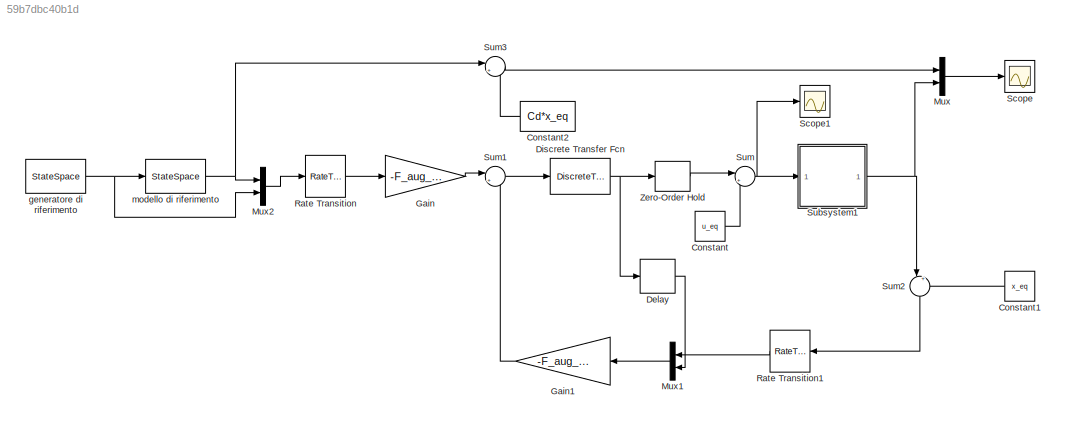
MODEL slx_59b7dbc40b1d
KIND model
CONFIG AbsTol = auto
CONFIG EnableMultiTasking = off
CONFIG FixedStep = auto
CONFIG MaxStep = auto
CONFIG MinStep = auto
CONFIG RelTol = 1e-3
CONFIG SampleTimeConstraint = Unconstrained
CONFIG SolverName = VariableStepAuto
CONFIG StartTime = 0.0
CONFIG StopTime = tsim
BLOCK [Constant] Constant
  Value = u_eq
BLOCK [Constant] Constant1
  Value = x_eq
  VectorParams1D = off
BLOCK [Constant] Constant2
  Value = Cd*x_eq
BLOCK [Delay] Delay
  DelayLength = 1
  InputPortMap = u0
  Ports = [1, 1]
  SampleTime = Tc
BLOCK [DiscreteTransferFcn] Discrete Transfer Fcn
  Denominator = [1 -1]
  InputPortMap = u0
  Numerator = [1 0]
  Ports = [1, 1]
  SampleTime = Tc
BLOCK [Gain] Gain
  Gain = -F_aug_mf_fb_infinito
  Multiplication = Matrix(K*u)
BLOCK [Gain] Gain1
  Gain = -F_aug_acc_fb_infinito
  Multiplication = Matrix(K*u)
BLOCK [Mux] Mux
  DisplayOption = bar
  Inputs = 2
  Ports = [2, 1]
BLOCK [Mux] Mux1
  DisplayOption = bar
  Inputs = 2
  Ports = [2, 1]
BLOCK [Mux] Mux2
  DisplayOption = bar
  Inputs = 2
  Ports = [2, 1]
BLOCK [RateTransition] Rate Transition
  OutPortSampleTime = Tc
BLOCK [RateTransition] Rate Transition1
  OutPortSampleTime = Tc
BLOCK [Scope] Scope
  Floating = off
  NumInputPorts = 1
  Ports = [1]
  ScopeSpecificationString = Simulink.scopes.TimeScopeBlockCfg('CurrentConfiguration', extmgr.ConfigurationSet(extmgr.Configuration('Core','General UI',true),extmgr.Configuration('Core','Source UI',true),extmgr.Configuration('Sources','WiredSimulink',true,'DataLogging',true,'DataLoggingVariableName','stati','DataLoggingSaveFormat','StructureWithTime'),extmgr.Configuration('Visuals','Time Domain',true,'SerializedDisplays',{str...<+1709ch>
BLOCK [Scope] Scope1
  Floating = off
  NumInputPorts = 1
  Ports = [1]
  ScopeSpecificationString = Simulink.scopes.TimeScopeBlockCfg('CurrentConfiguration', extmgr.ConfigurationSet(extmgr.Configuration('Core','General UI',true),extmgr.Configuration('Core','Source UI',true),extmgr.Configuration('Sources','WiredSimulink',true,'DataLoggingVariableName','ScopeData2'),extmgr.Configuration('Visuals','Time Domain',true,'SerializedDisplays',{struct('MinYLimReal','-299981.26701','MaxYLimReal','576578.35...<+1427ch>
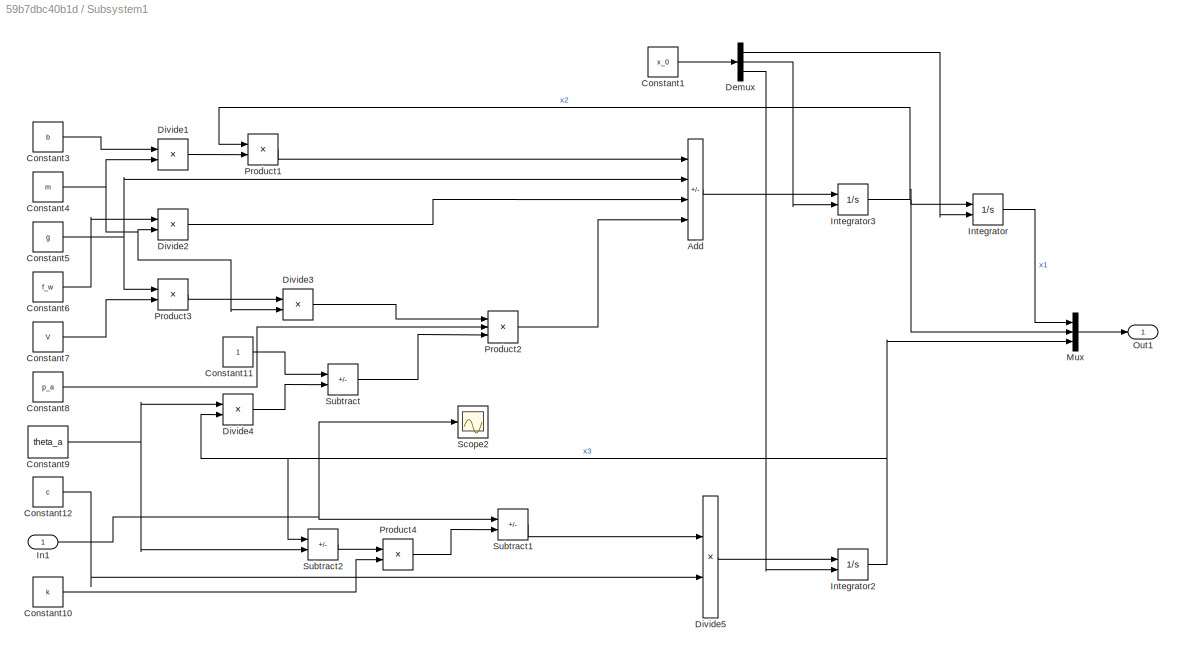
BLOCK [SubSystem] Subsystem1
  Ports = [1, 1]
  RequestExecContextInheritance = off
BLOCK [Sum] Subsystem1/Add
  IconShape = rectangular
  Inputs = --++
  Ports = [4, 1]
BLOCK [Constant] Subsystem1/Constant1
  Value = x_0
BLOCK [Constant] Subsystem1/Constant10
  Value = k
BLOCK [Constant] Subsystem1/Constant11
BLOCK [Constant] Subsystem1/Constant12
  Value = c
BLOCK [Constant] Subsystem1/Constant3
  Value = b
BLOCK [Constant] Subsystem1/Constant4
  Value = m
BLOCK [Constant] Subsystem1/Constant5
  Value = g
BLOCK [Constant] Subsystem1/Constant6
  Value = f_w
BLOCK [Constant] Subsystem1/Constant7
  Value = V
BLOCK [Constant] Subsystem1/Constant8
  Value = p_a
BLOCK [Constant] Subsystem1/Constant9
  Value = theta_a
BLOCK [Demux] Subsystem1/Demux
  Outputs = 3
  Ports = [1, 3]
BLOCK [Product] Subsystem1/Divide1
  Inputs = */
  Ports = [2, 1]
BLOCK [Product] Subsystem1/Divide2
  Inputs = */
  Ports = [2, 1]
BLOCK [Product] Subsystem1/Divide3
  Inputs = */
  Ports = [2, 1]
BLOCK [Product] Subsystem1/Divide4
  Inputs = */
  Ports = [2, 1]
BLOCK [Product] Subsystem1/Divide5
  Inputs = */
  Ports = [2, 1]
BLOCK [Inport] Subsystem1/In1
BLOCK [Integrator] Subsystem1/Integrator
  InitialCondition = 680
  InitialConditionSource = external
  Ports = [2, 1]
BLOCK [Integrator] Subsystem1/Integrator2
  InitialCondition = 400
  InitialConditionSource = external
  Ports = [2, 1]
BLOCK [Integrator] Subsystem1/Integrator3
  InitialConditionSource = external
  Ports = [2, 1]
BLOCK [Mux] Subsystem1/Mux
  DisplayOption = bar
  Inputs = 3
  Ports = [3, 1]
BLOCK [Outport] Subsystem1/Out1
BLOCK [Product] Subsystem1/Product1
  Ports = [2, 1]
BLOCK [Product] Subsystem1/Product2
  Inputs = 3
  Ports = [3, 1]
BLOCK [Product] Subsystem1/Product3
  Ports = [2, 1]
BLOCK [Product] Subsystem1/Product4
  Ports = [2, 1]
BLOCK [Scope] Subsystem1/Scope2
  Floating = off
  NumInputPorts = 1
  Ports = [1]
  ScopeSpecificationString = Simulink.scopes.TimeScopeBlockCfg('CurrentConfiguration', extmgr.ConfigurationSet(extmgr.Configuration('Core','General UI',true),extmgr.Configuration('Core','Source UI',true),extmgr.Configuration('Sources','WiredSimulink',true,'DataLoggingVariableName','ScopeData1'),extmgr.Configuration('Visuals','Time Domain',true,'SerializedDisplays',{struct('MinYLimReal','0.17782','MaxYLimReal','0.37782','YLabe...<+1493ch>
BLOCK [Sum] Subsystem1/Subtract
  IconShape = rectangular
  Inputs = +-
  Ports = [2, 1]
BLOCK [Sum] Subsystem1/Subtract1
  IconShape = rectangular
  Inputs = +-
  Ports = [2, 1]
BLOCK [Sum] Subsystem1/Subtract2
  IconShape = rectangular
  Inputs = +-
  Ports = [2, 1]
BLOCK [Sum] Sum
  Inputs = |++
  Ports = [2, 1]
BLOCK [Sum] Sum1
  Inputs = |++
  Ports = [2, 1]
BLOCK [Sum] Sum2
  Inputs = |+-
  NameLocation = right
  Ports = [2, 1]
BLOCK [Sum] Sum3
  Inputs = |++
  Ports = [2, 1]
BLOCK [ZeroOrderHold] Zero-Order Hold
  SampleTime = Tc
BLOCK [StateSpace] generatore di riferimento
  A = Arc
  B = Brc
  C = Crc
  D = Drc
  InitialCondition = 600
  Ports = [1, 1]
BLOCK [StateSpace] modello di riferimento
  A = A_tilde
  B = B_tilde
  C = [C_tilde; eye(nmf)]
  D = [D_tilde;0]
  InitialCondition = 0
  Ports = [1, 1]
LINE Constant1:1 -> Sum2:2
LINE Constant2:1 -> Sum3:2
LINE Constant:1 -> Sum:2
LINE Delay:1 -> Mux1:2
NET Discrete Transfer Fcn:1 -> Delay:1, Zero-Order Hold:1
LINE Gain1:1 -> Sum1:2
LINE Gain:1 -> Sum1:1
LINE Mux1:1 -> Gain1:1
LINE Mux2:1 -> Rate Transition:1
LINE Mux:1 -> Scope:1
LINE Rate Transition1:1 -> Mux1:1
LINE Rate Transition:1 -> Gain:1
LINE Subsystem1/Add:1 -> Subsystem1/Integrator3:1
LINE Subsystem1/Constant10:1 -> Subsystem1/Product4:2
LINE Subsystem1/Constant11:1 -> Subsystem1/Subtract:1
LINE Subsystem1/Constant12:1 -> Subsystem1/Divide5:2
LINE Subsystem1/Constant1:1 -> Subsystem1/Demux:1
LINE Subsystem1/Constant3:1 -> Subsystem1/Divide1:1
NET Subsystem1/Constant4:1 -> Subsystem1/Divide1:2, Subsystem1/Divide2:2, Subsystem1/Divide3:2
NET Subsystem1/Constant5:1 -> Subsystem1/Add:2, Subsystem1/Product3:1
LINE Subsystem1/Constant6:1 -> Subsystem1/Divide2:1
LINE Subsystem1/Constant7:1 -> Subsystem1/Product3:2
LINE Subsystem1/Constant8:1 -> Subsystem1/Product2:2
NET Subsystem1/Constant9:1 -> Subsystem1/Divide4:1, Subsystem1/Subtract2:2
LINE Subsystem1/Demux:1 -> Subsystem1/Integrator:2
LINE Subsystem1/Demux:2 -> Subsystem1/Integrator3:2
LINE Subsystem1/Demux:3 -> Subsystem1/Integrator2:2
LINE Subsystem1/Divide1:1 -> Subsystem1/Product1:2
LINE Subsystem1/Divide2:1 -> Subsystem1/Add:3
LINE Subsystem1/Divide3:1 -> Subsystem1/Product2:1
LINE Subsystem1/Divide4:1 -> Subsystem1/Subtract:2
LINE Subsystem1/Divide5:1 -> Subsystem1/Integrator2:1
NET Subsystem1/In1:1 -> Subsystem1/Scope2:1, Subsystem1/Subtract1:1
NET Subsystem1/Integrator2:1 -> Subsystem1/Divide4:2, Subsystem1/Mux:3, Subsystem1/Subtract2:1
NET Subsystem1/Integrator3:1 -> Subsystem1/Integrator:1, Subsystem1/Mux:2, Subsystem1/Product1:1
LINE Subsystem1/Integrator:1 -> Subsystem1/Mux:1
LINE Subsystem1/Mux:1 -> Subsystem1/Out1:1
LINE Subsystem1/Product1:1 -> Subsystem1/Add:1
LINE Subsystem1/Product2:1 -> Subsystem1/Add:4
LINE Subsystem1/Product3:1 -> Subsystem1/Divide3:1
LINE Subsystem1/Product4:1 -> Subsystem1/Subtract1:2
LINE Subsystem1/Subtract1:1 -> Subsystem1/Divide5:1
LINE Subsystem1/Subtract2:1 -> Subsystem1/Product4:1
LINE Subsystem1/Subtract:1 -> Subsystem1/Product2:3
NET Subsystem1:1 -> Mux:2, Sum2:1
LINE Sum1:1 -> Discrete Transfer Fcn:1
LINE Sum2:1 -> Rate Transition1:1
LINE Sum3:1 -> Mux:1
NET Sum:1 -> Scope1:1, Subsystem1:1
LINE Zero-Order Hold:1 -> Sum:1
NET generatore di riferimento:1 -> Mux2:2, modello di riferimento:1
NET modello di riferimento:1 -> Mux2:1, Sum3:1
note: NET lines group one-source signal fan-out (src -> all destinations, sorted); 1:1 wires keep LINE
